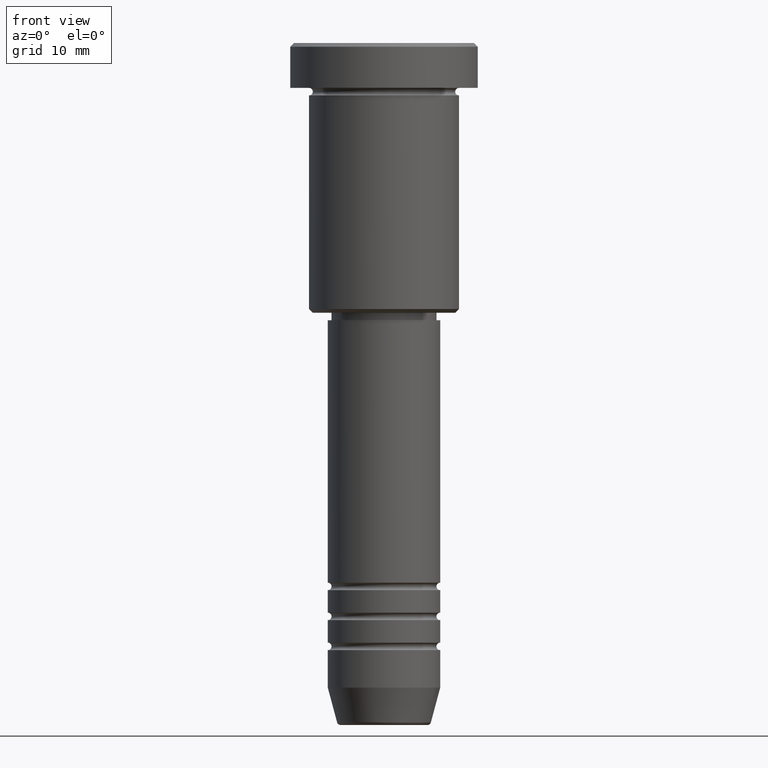
[diagram: clean part render]
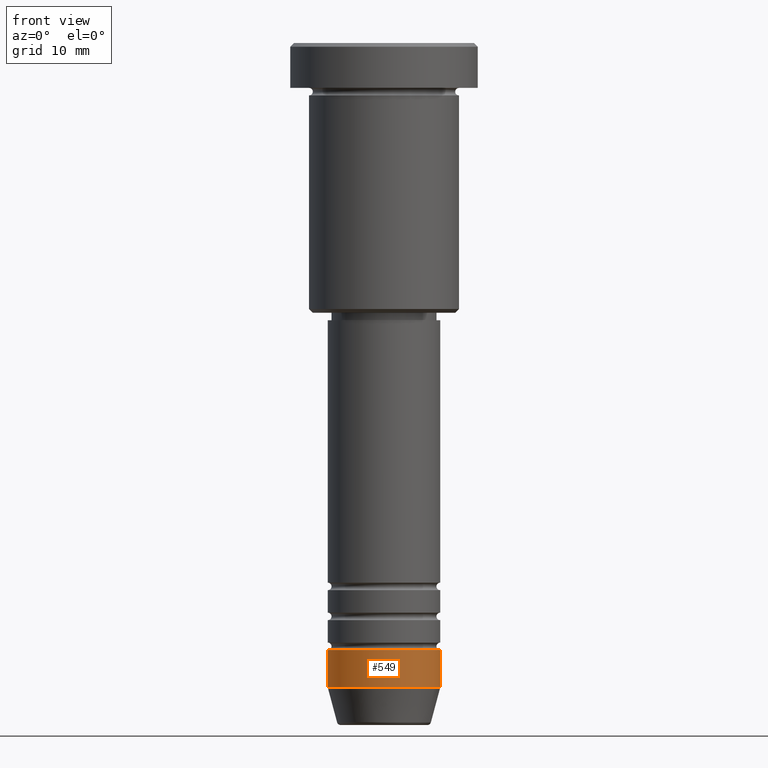
[diagram: same view with one face highlighted and labeled with its STEP entity id]
A machine part, front view. The second image highlights one B-rep face of the part: STEP entity #549.
In plain terms, the highlighted cylindrical surface (partial cylindrical patch) has radius 7.5 mm, axis along (-0, -0, 1).
Its self-contained STEP definition (entity closure, byte-faithful):
#14 = FACE_OUTER_BOUND ( 'NONE', #620, .T. ) ;
#64 = LINE ( 'NONE', #1005, #448 ) ;
#119 = CARTESIAN_POINT ( 'NONE',  ( -7.500000000000000000, 9.184850993605147944E-16, -80.99999999999998579 ) ) ;
#156 = EDGE_CURVE ( 'NONE', #437, #666, #402, .T. ) ;
#162 = CARTESIAN_POINT ( 'NONE',  ( -7.500000000000000000, 9.184850993605147944E-16, -86.00000000000000000 ) ) ;
#164 = VERTEX_POINT ( 'NONE', #119 ) ;
#205 = DIRECTION ( 'NONE',  ( -0.000000000000000000, -0.000000000000000000, 1.000000000000000000 ) ) ;
#210 = CARTESIAN_POINT ( 'NONE',  ( 7.500000000000000000, 0.000000000000000000, -80.99999999999998579 ) ) ;
#268 = DIRECTION ( 'NONE',  ( 1.000000000000000000, 0.000000000000000000, 0.000000000000000000 ) ) ;
#278 = VECTOR ( 'NONE', #856, 1000.000000000000000 ) ;
#290 = CARTESIAN_POINT ( 'NONE',  ( 0.000000000000000000, 0.000000000000000000, -86.00000000000000000 ) ) ;
#302 = EDGE_CURVE ( 'NONE', #703, #164, #64, .T. ) ;
#327 = EDGE_CURVE ( 'NONE', #164, #666, #356, .T. ) ;
#356 = CIRCLE ( 'NONE', #1018, 7.500000000000000000 ) ;
#364 = CARTESIAN_POINT ( 'NONE',  ( 0.000000000000000000, 0.000000000000000000, -80.99999999999998579 ) ) ;
#381 = CYLINDRICAL_SURFACE ( 'NONE', #487, 7.500000000000000000 ) ;
#402 = LINE ( 'NONE', #1052, #278 ) ;
#437 = VERTEX_POINT ( 'NONE', #559 ) ;
#446 = EDGE_CURVE ( 'NONE', #703, #437, #1169, .T. ) ;
#448 = VECTOR ( 'NONE', #541, 1000.000000000000000 ) ;
#459 = CARTESIAN_POINT ( 'NONE',  ( 0.000000000000000000, 0.000000000000000000, 0.000000000000000000 ) ) ;
#487 = AXIS2_PLACEMENT_3D ( 'NONE', #459, #816, #1098 ) ;
#541 = DIRECTION ( 'NONE',  ( -0.000000000000000000, -0.000000000000000000, 1.000000000000000000 ) ) ;
#549 = ADVANCED_FACE ( 'NONE', ( #14 ), #381, .T. ) ;
#559 = CARTESIAN_POINT ( 'NONE',  ( 7.500000000000000000, 0.000000000000000000, -86.00000000000000000 ) ) ;
#620 = EDGE_LOOP ( 'NONE', ( #895, #1136, #761, #973 ) ) ;
#628 = AXIS2_PLACEMENT_3D ( 'NONE', #290, #205, #645 ) ;
#645 = DIRECTION ( 'NONE',  ( 1.000000000000000000, 0.000000000000000000, 0.000000000000000000 ) ) ;
#666 = VERTEX_POINT ( 'NONE', #210 ) ;
#703 = VERTEX_POINT ( 'NONE', #162 ) ;
#761 = ORIENTED_EDGE ( 'NONE', *, *, #156, .T. ) ;
#816 = DIRECTION ( 'NONE',  ( -0.000000000000000000, -0.000000000000000000, 1.000000000000000000 ) ) ;
#856 = DIRECTION ( 'NONE',  ( -0.000000000000000000, -0.000000000000000000, 1.000000000000000000 ) ) ;
#895 = ORIENTED_EDGE ( 'NONE', *, *, #302, .F. ) ;
#897 = DIRECTION ( 'NONE',  ( -0.000000000000000000, -0.000000000000000000, 1.000000000000000000 ) ) ;
#973 = ORIENTED_EDGE ( 'NONE', *, *, #327, .F. ) ;
#1005 = CARTESIAN_POINT ( 'NONE',  ( -7.500000000000000000, 9.184850993605147944E-16, 0.000000000000000000 ) ) ;
#1018 = AXIS2_PLACEMENT_3D ( 'NONE', #364, #897, #268 ) ;
#1052 = CARTESIAN_POINT ( 'NONE',  ( 7.500000000000000000, 0.000000000000000000, 0.000000000000000000 ) ) ;
#1098 = DIRECTION ( 'NONE',  ( 1.000000000000000000, 0.000000000000000000, 0.000000000000000000 ) ) ;
#1136 = ORIENTED_EDGE ( 'NONE', *, *, #446, .T. ) ;
#1169 = CIRCLE ( 'NONE', #628, 7.500000000000000000 ) ;